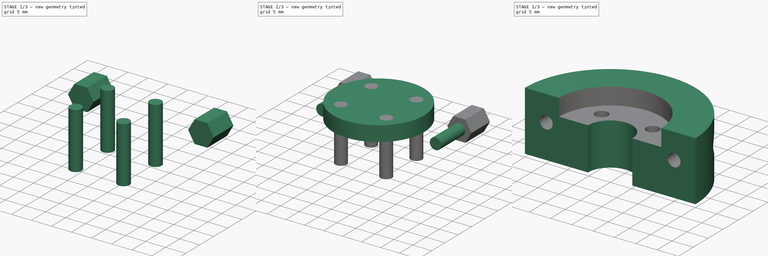
[diagram: build sequence overview — one tinted view per stage of 3, left to right]
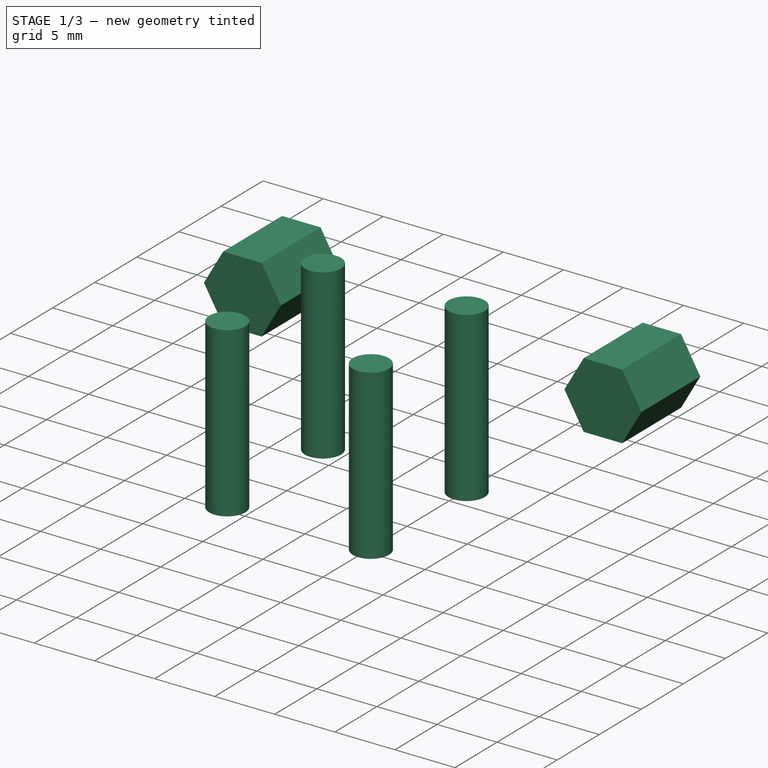
[diagram: stage 1 of 3 — iso view after this stage's code; geometry added in this stage tinted green]
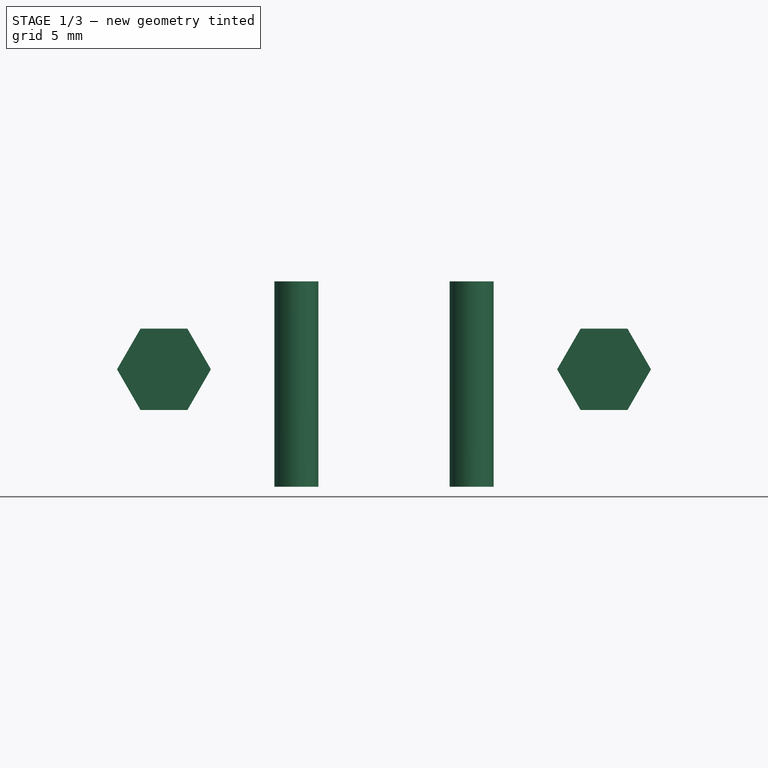
[diagram: stage 1 of 3 — front view after this stage's code; geometry added in this stage tinted green]
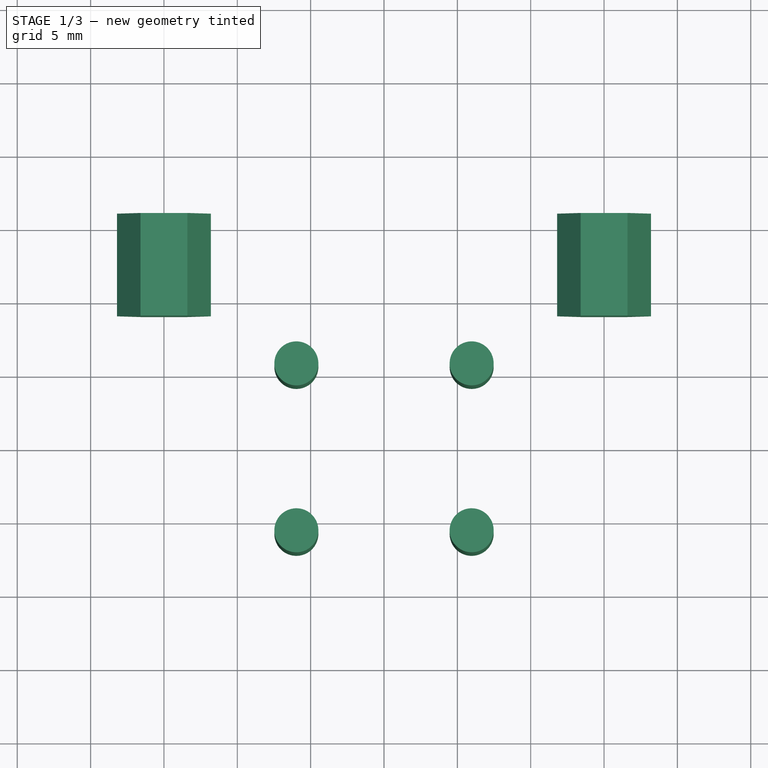
[diagram: stage 1 of 3 — top view after this stage's code; geometry added in this stage tinted green]
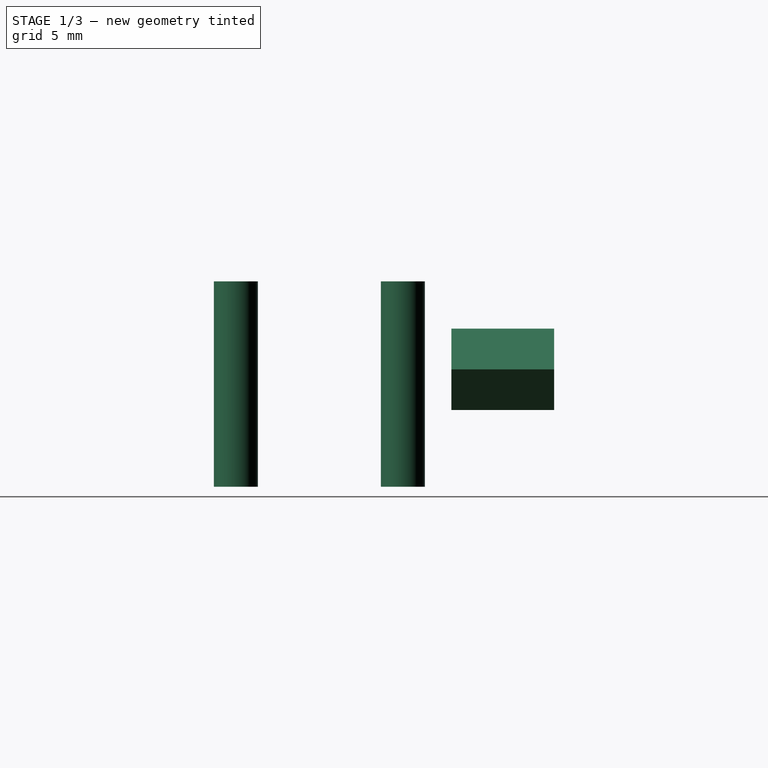
[diagram: stage 1 of 3 — right view after this stage's code; geometry added in this stage tinted green]
FCSTD DOCUMENT  (FreeCAD 0.16R6707 (Git))
Label: LeadScrewNutMount
License: All rights reserved
LicenseURL: http://en.wikipedia.org/wiki/All_rights_reserved
objects: Sketcher::SketchObject×5, PartDesign::Pad×5, Part::MultiFuse×1, Part::Cut×1
note: 17 computed .brp shape members not serialized (recipe doc carries the construction recipe); baked Part::Feature solids carry a one-line shape summary decoded from their .brp

FEATURE [Sketcher::SketchObject] Sketch003
  Placement = pos=(0,16,0) rot=(1,0,0;1.5708rad)
  sketch-geometry (14):
    g0: LineSegment StartX=-13.4 StartY=5.22872 StartZ=0 EndX=-11.8 EndY=8 EndZ=0
    g1: LineSegment StartX=-11.8 StartY=8 StartZ=0 EndX=-13.4 EndY=10.7713 EndZ=0
    g2: LineSegment StartX=-13.4 StartY=10.7713 StartZ=0 EndX=-16.6 EndY=10.7713 EndZ=0
    g3: LineSegment StartX=-16.6 StartY=10.7713 StartZ=0 EndX=-18.2 EndY=8 EndZ=0
    g4: LineSegment StartX=-18.2 StartY=8 StartZ=0 EndX=-16.6 EndY=5.22872 EndZ=0
    g5: LineSegment StartX=-16.6 StartY=5.22872 StartZ=0 EndX=-13.4 EndY=5.22872 EndZ=0
    g6: Circle [constr] CenterX=-15 CenterY=8 CenterZ=0 NormalX=0 NormalY=0 NormalZ=1 Radius=3.2
    g7: LineSegment StartX=16.6 StartY=5.22872 StartZ=0 EndX=18.2 EndY=8 EndZ=0
    g8: LineSegment StartX=18.2 StartY=8 StartZ=0 EndX=16.6 EndY=10.7713 EndZ=0
    g9: LineSegment StartX=16.6 StartY=10.7713 StartZ=0 EndX=13.4 EndY=10.7713 EndZ=0
    g10: LineSegment StartX=13.4 StartY=10.7713 StartZ=0 EndX=11.8 EndY=8 EndZ=0
    g11: LineSegment StartX=11.8 StartY=8 StartZ=0 EndX=13.4 EndY=5.22872 EndZ=0
    g12: LineSegment StartX=13.4 StartY=5.22872 StartZ=0 EndX=16.6 EndY=5.22872 EndZ=0
    g13: Circle [constr] CenterX=15 CenterY=8 CenterZ=0 NormalX=0 NormalY=0 NormalZ=1 Radius=3.2
  constraints (34):
    c: Coincident(g0,g1)
    c: Coincident(g1,g2)
    c: Coincident(g2,g3)
    c: Coincident(g3,g4)
    c: Coincident(g4,g5)
    c: Coincident(g5,g0)
    c: Equal(g0, g1-g5) x5
    c: PointOnObject(g0,g6)
    c: PointOnObject(g1,g6)
    c: PointOnObject(g2,g6)
    c: PointOnObject(g3,g6)
    c: PointOnObject(g4,g6)
    c: PointOnObject(g5,g6)
    c: Coincident(g7,g8)
    c: Coincident(g8,g9)
    c: Coincident(g9,g10)
    c: Coincident(g10,g11)
    c: Coincident(g11,g12)
    c: Coincident(g12,g7)
    c: Equal(g7, g8-g12) x5
    c: PointOnObject(g7,g13)
    c: PointOnObject(g8,g13)
    c: PointOnObject(g9,g13)
    c: PointOnObject(g10,g13)
    c: PointOnObject(g11,g13)
    c: PointOnObject(g12,g13)
    c: DistanceY(g6,g13) = 0
    c: DistanceX(g6,g13) = 30
    c: Symmetric(g6,g13,g-2)
    c: DistanceY(g-1,g6) = 8
    c: Parallel(g5,g12)
    c: Parallel(g12,g-1)
    c: Radius(g6) = 3.2
    c: Equal(g6,g13)
FEATURE [PartDesign::Pad] Pad003  label="NutFlush"
  Length = 7
  Length2 = 100
  Placement = pos=(0,16,0) rot=(1,0,0;1.5708rad)
  Sketch = -> Sketch003
  Type = 0
FEATURE [Sketcher::SketchObject] Sketch004
  sketch-geometry (4):
    g0: Circle CenterX=-5.9744 CenterY=5.68938 CenterZ=0 NormalX=0 NormalY=0 NormalZ=1 Radius=1.5
    g1: Circle CenterX=5.9744 CenterY=5.68938 CenterZ=0 NormalX=0 NormalY=0 NormalZ=1 Radius=1.5
    g2: Circle CenterX=-5.9744 CenterY=-5.68938 CenterZ=0 NormalX=0 NormalY=0 NormalZ=1 Radius=1.5
    g3: Circle CenterX=5.9744 CenterY=-5.68938 CenterZ=0 NormalX=0 NormalY=0 NormalZ=1 Radius=1.5
  constraints (12):
    c: Symmetric(g1,g0,g-2)
    c: Radius(g1) = 1.5
    c: Equal(g1,g0)
    c: Symmetric(g0,g3,g-1)
    c: Symmetric(g2,g1,g-1)
    c: Distance(g3,g0) = 16.5
    c: Equal(g2,g3)
    c: Equal(g3,g1)
    c: Symmetric(g3,g1,g-1)
    c: Symmetric(g0,g2,g-1)
    c: Symmetric(g2,g3,g-2)
    c: Distance(g2,g1) = 16.5
FEATURE [PartDesign::Pad] Pad004  label="LeadNutFlush001"
  Length = 14
  Length2 = 100
  Sketch = -> Sketch004
  Type = 0
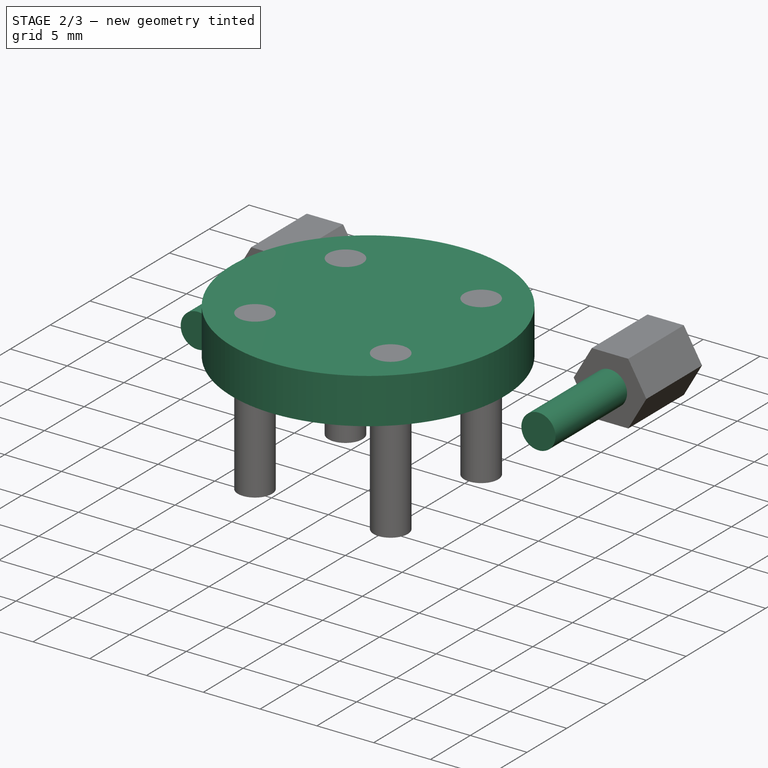
[diagram: stage 2 of 3 — iso view after this stage's code; geometry added in this stage tinted green]
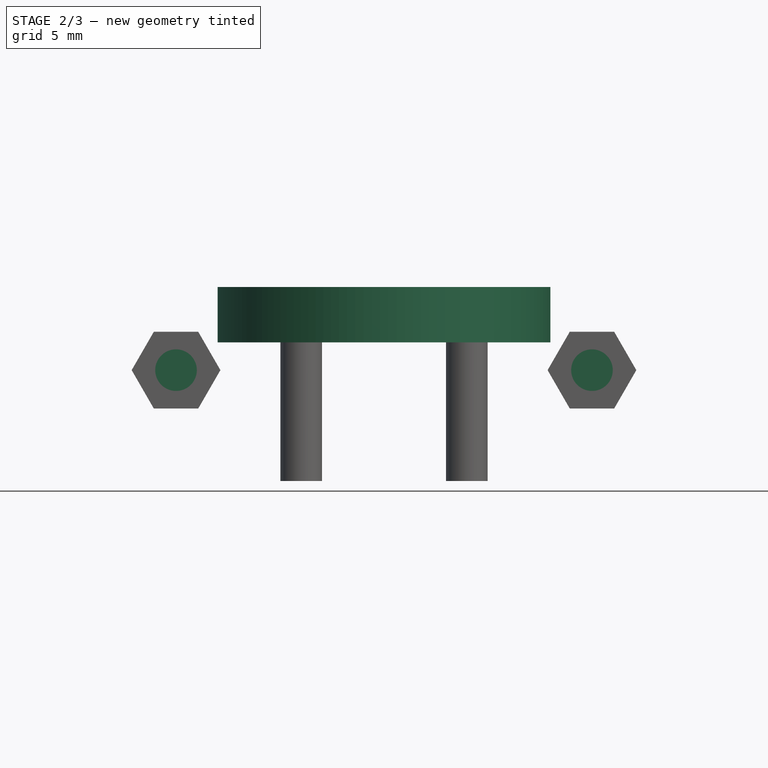
[diagram: stage 2 of 3 — front view after this stage's code; geometry added in this stage tinted green]
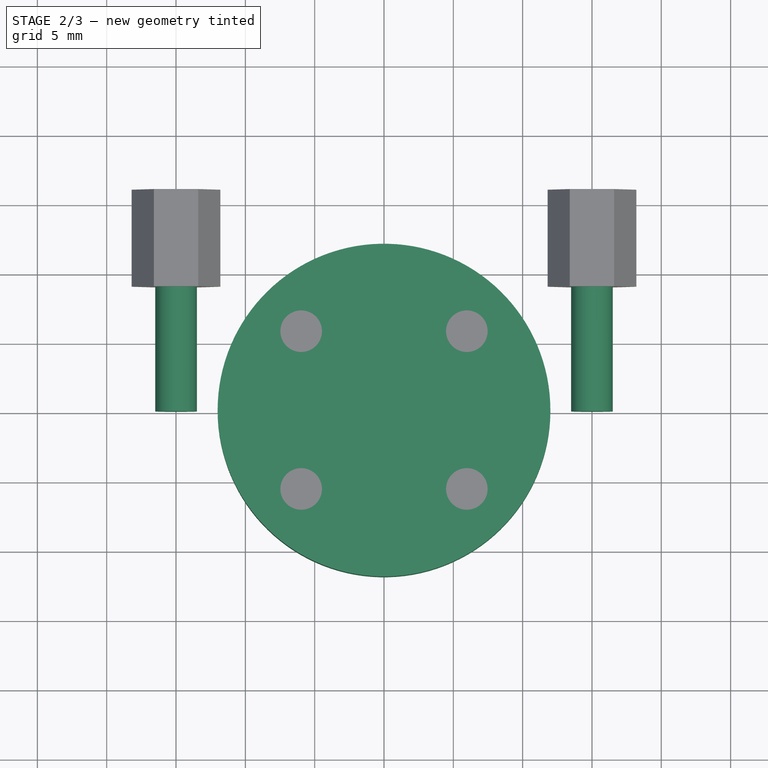
[diagram: stage 2 of 3 — top view after this stage's code; geometry added in this stage tinted green]
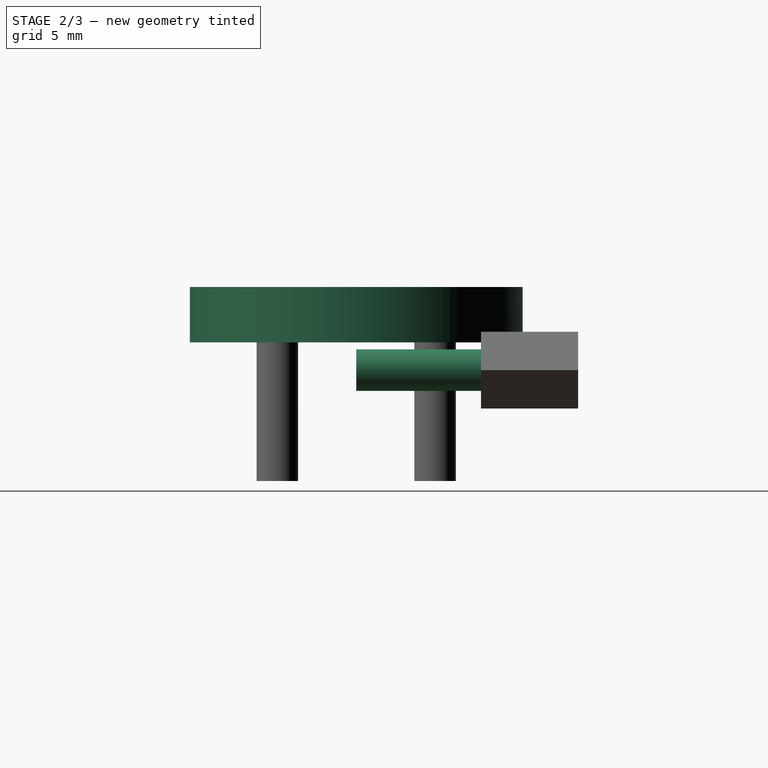
[diagram: stage 2 of 3 — right view after this stage's code; geometry added in this stage tinted green]
FEATURE [Sketcher::SketchObject] Sketch001
  Placement = pos=(0,0,14) rot=(0,0,1;0rad)
  sketch-geometry (1):
    g0: Circle CenterX=0 CenterY=0 CenterZ=0 NormalX=0 NormalY=0 NormalZ=1 Radius=12
  constraints (2):
    c: Coincident(g0,g-1)
    c: Radius(g0) = 12
FEATURE [PartDesign::Pad] Pad001  label="LeadNutFlush"
  Length = 4
  Length2 = 100
  Placement = pos=(0,0,14) rot=(0,0,1;0rad)
  Reversed = true
  Sketch = -> Sketch001
  Type = 0
FEATURE [Sketcher::SketchObject] Sketch002
  Placement = pos=(0,0,0) rot=(1,0,0;1.5708rad)
  sketch-geometry (2):
    g0: Circle CenterX=-15 CenterY=8 CenterZ=0 NormalX=0 NormalY=0 NormalZ=1 Radius=1.5
    g1: Circle CenterX=15 CenterY=8 CenterZ=0 NormalX=0 NormalY=0 NormalZ=1 Radius=1.5
  constraints (6):
    c: Radius(g0) = 1.5
    c: Equal(g0,g1)
    c: DistanceY(g0,g1) = 0
    c: DistanceX(g0,g1) = 30
    c: DistanceY(g-1,g1) = 8
    c: Symmetric(g1,g0,g-2)
FEATURE [PartDesign::Pad] Pad002  label="Mount"
  Length = 15
  Length2 = 100
  Placement = pos=(0,0,0) rot=(1,0,0;1.5708rad)
  Reversed = true
  Sketch = -> Sketch002
  Type = 0
FEATURE [Part::MultiFuse] Fusion  label="CutBlock"
  Shapes = -> [Pad004,Pad003,Pad002,Pad001]
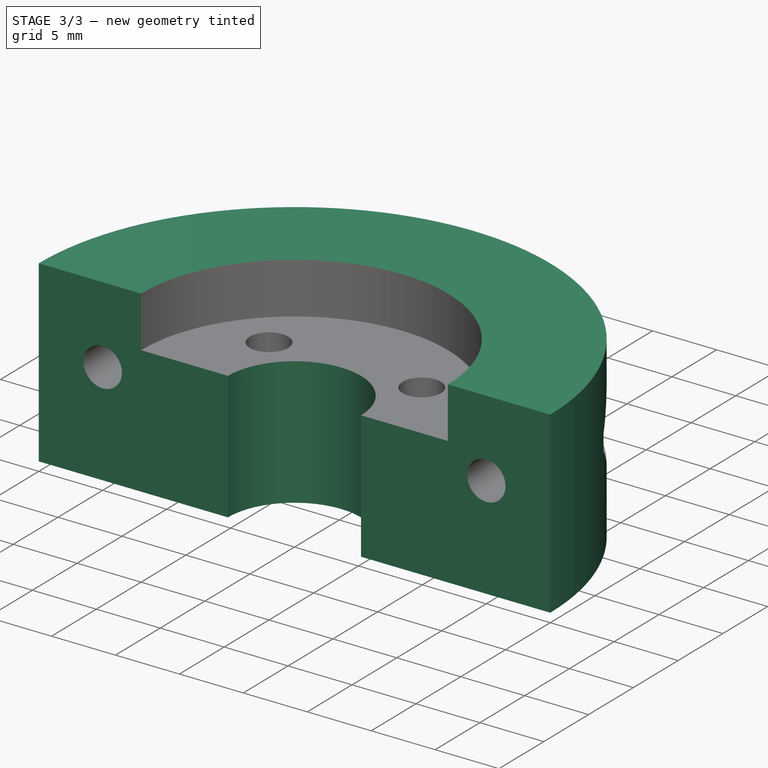
[diagram: stage 3 of 3 — iso view after this stage's code; geometry added in this stage tinted green]
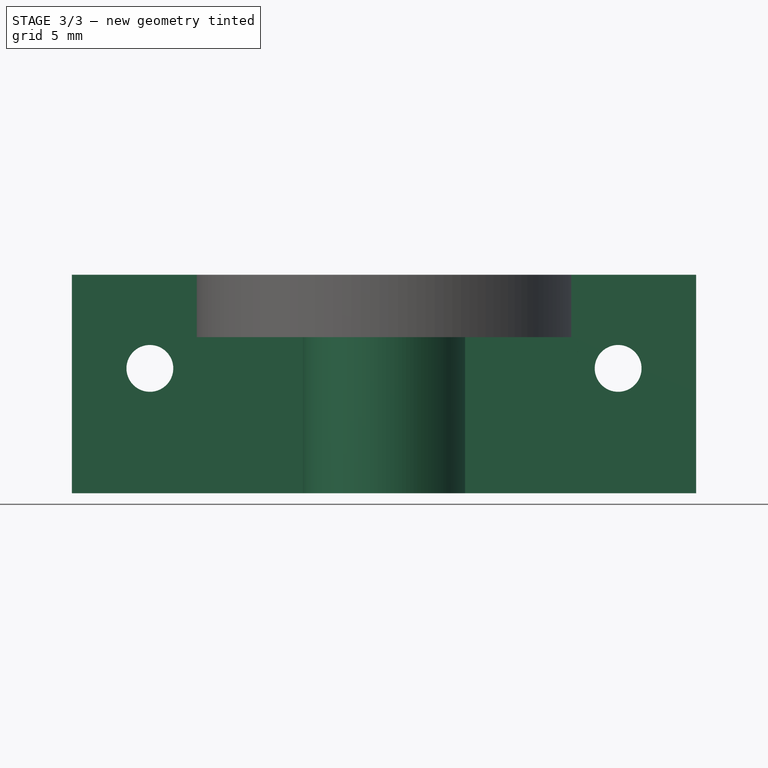
[diagram: stage 3 of 3 — front view after this stage's code; geometry added in this stage tinted green]
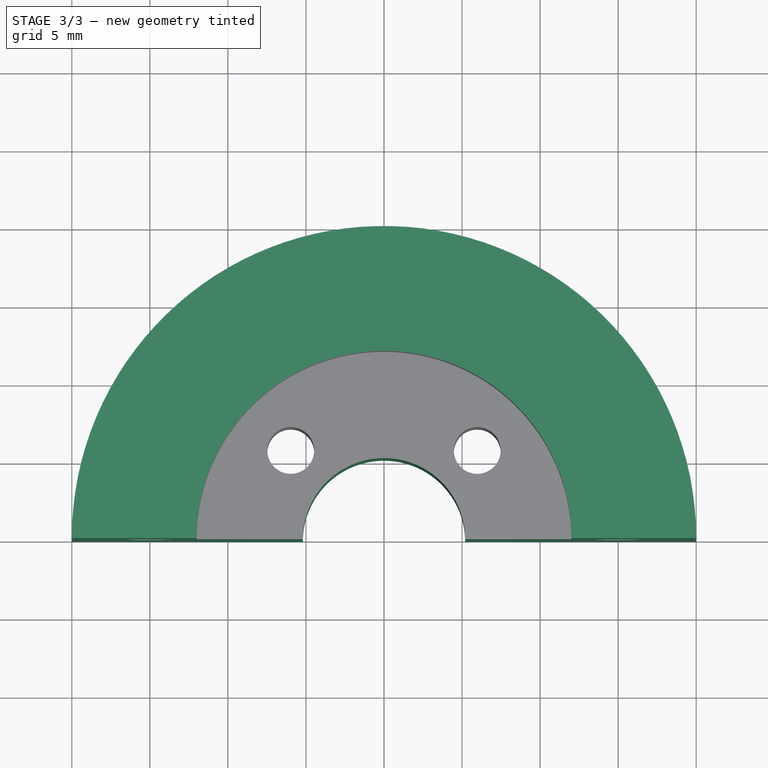
[diagram: stage 3 of 3 — top view after this stage's code; geometry added in this stage tinted green]
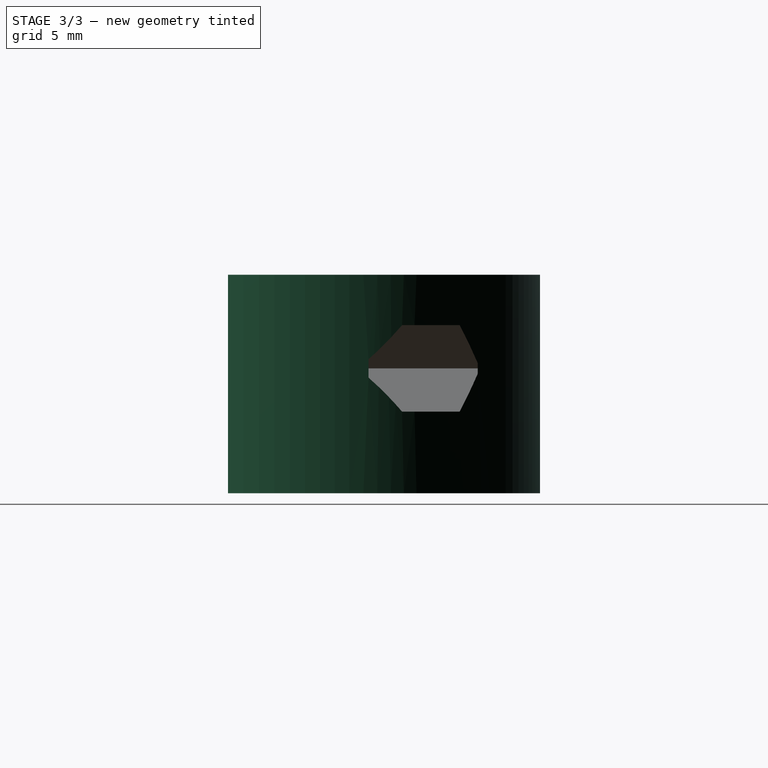
[diagram: stage 3 of 3 — right view after this stage's code; geometry added in this stage tinted green]
FEATURE [Sketcher::SketchObject] Sketch
  sketch-geometry (4):
    g0: ArcOfCircle CenterX=0 CenterY=0 CenterZ=0 NormalX=0 NormalY=0 NormalZ=1 Radius=5.2 StartAngle=0 EndAngle=3.14159
    g1: ArcOfCircle CenterX=0 CenterY=0 CenterZ=0 NormalX=0 NormalY=0 NormalZ=1 Radius=20 StartAngle=0 EndAngle=3.14159
    g2: LineSegment StartX=-20 StartY=0 StartZ=0 EndX=-5.2 EndY=0 EndZ=0
    g3: LineSegment StartX=5.2 StartY=0 StartZ=0 EndX=20 EndY=0 EndZ=0
  constraints (14):
    c: Coincident(g0,g-1)
    c: PointOnObject(g0,g-1)
    c: PointOnObject(g0,g-1)
    c: Coincident(g1,g-1)
    c: PointOnObject(g1,g-1)
    c: PointOnObject(g1,g-1)
    c: Horizontal(g2)
    c: Horizontal(g3)
    c: Coincident(g3,g1)
    c: Coincident(g3,g0)
    c: Coincident(g2,g0)
    c: Coincident(g2,g1)
    c: Radius(g0) = 5.2
    c: Radius(g1) = 20
FEATURE [PartDesign::Pad] Pad  label="Base"
  Length = 14
  Length2 = 100
  Sketch = -> Sketch
  Type = 0
FEATURE [Part::Cut] Cut
  Base = -> Pad
  Tool = -> Fusion
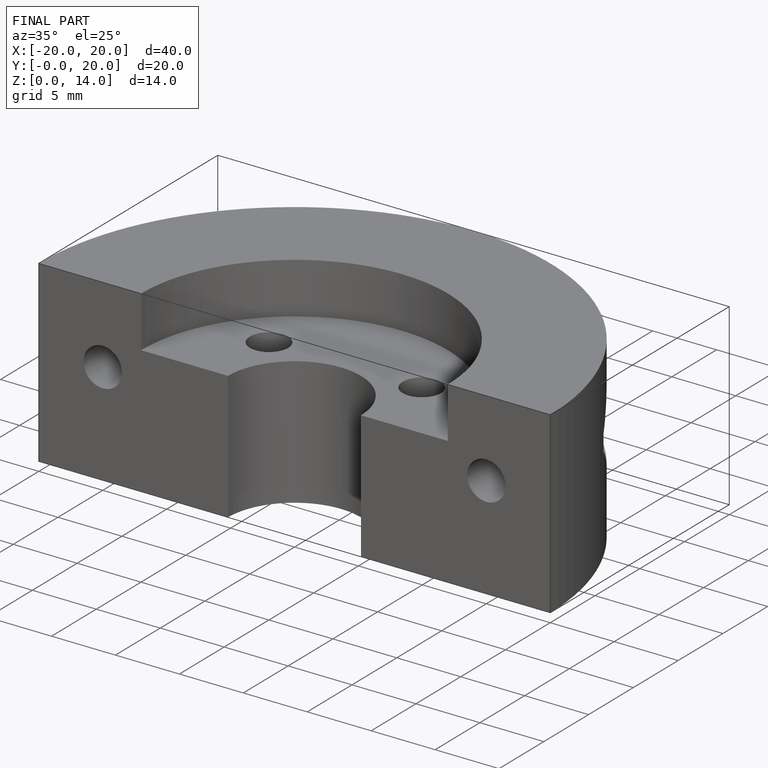
[diagram: finished part — iso view with bounding-box wireframe]
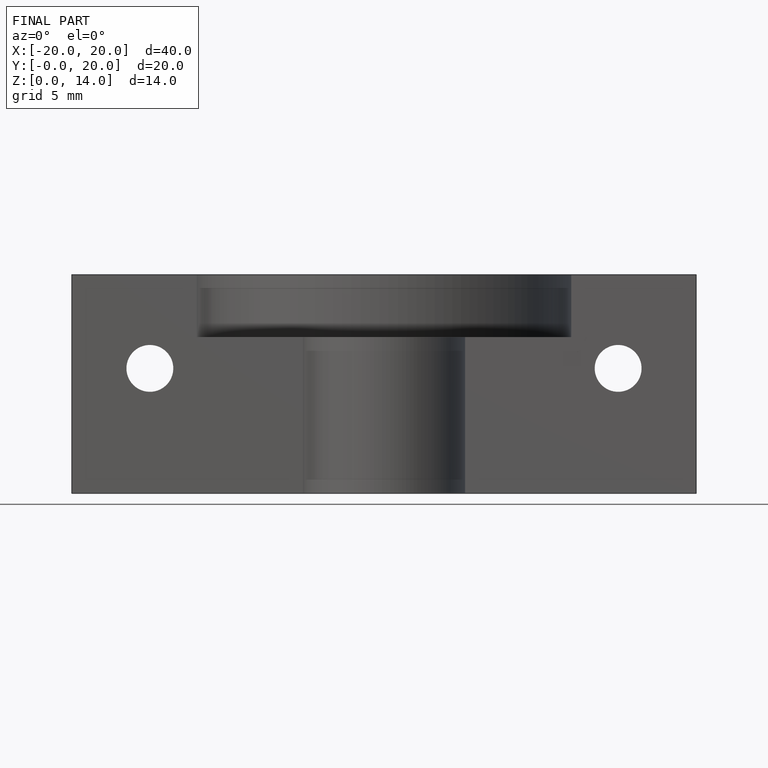
[diagram: finished part — front view with bounding-box wireframe]
